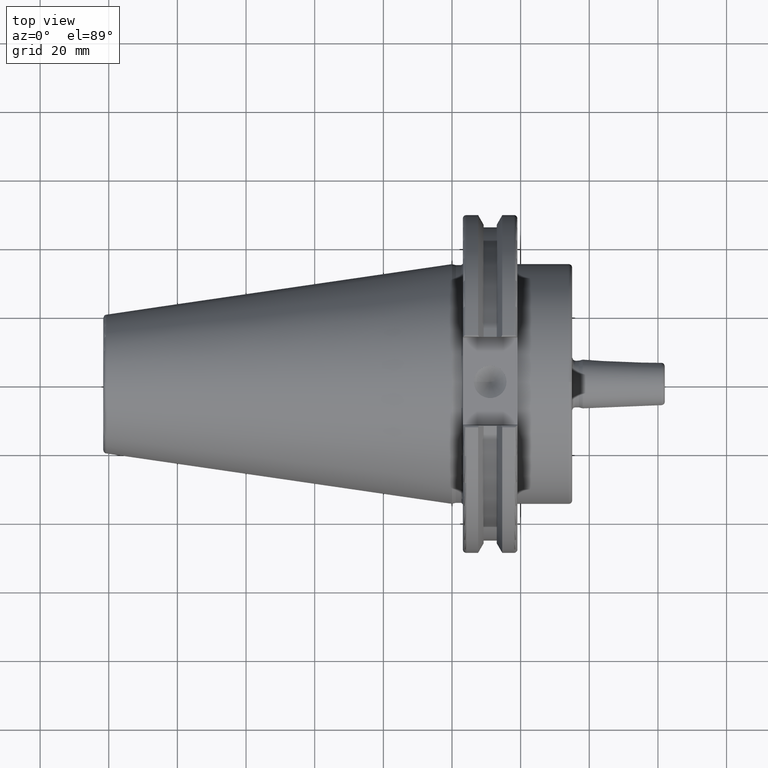
[diagram: clean part render]
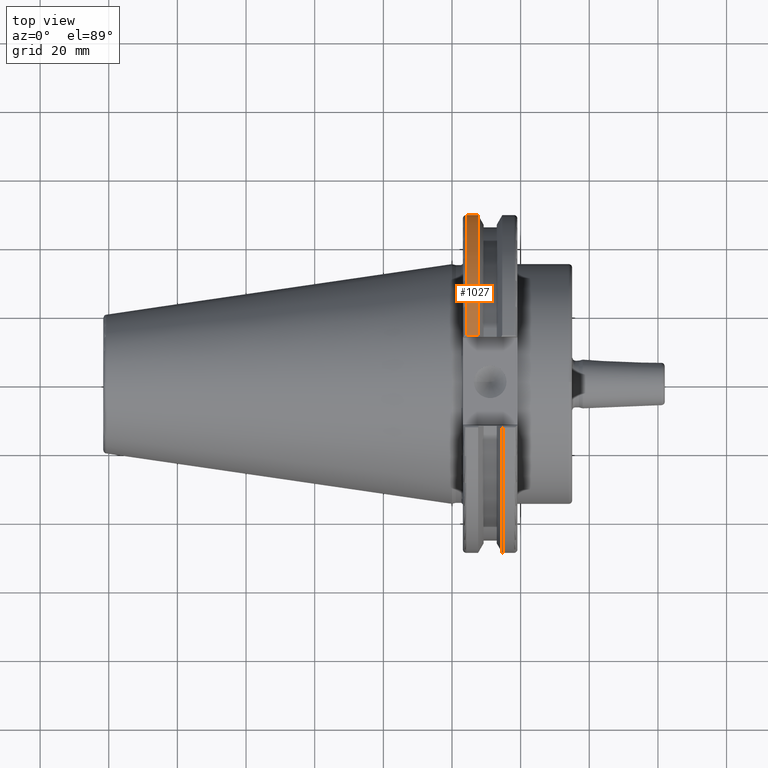
[diagram: same view with one face highlighted and labeled with its STEP entity id]
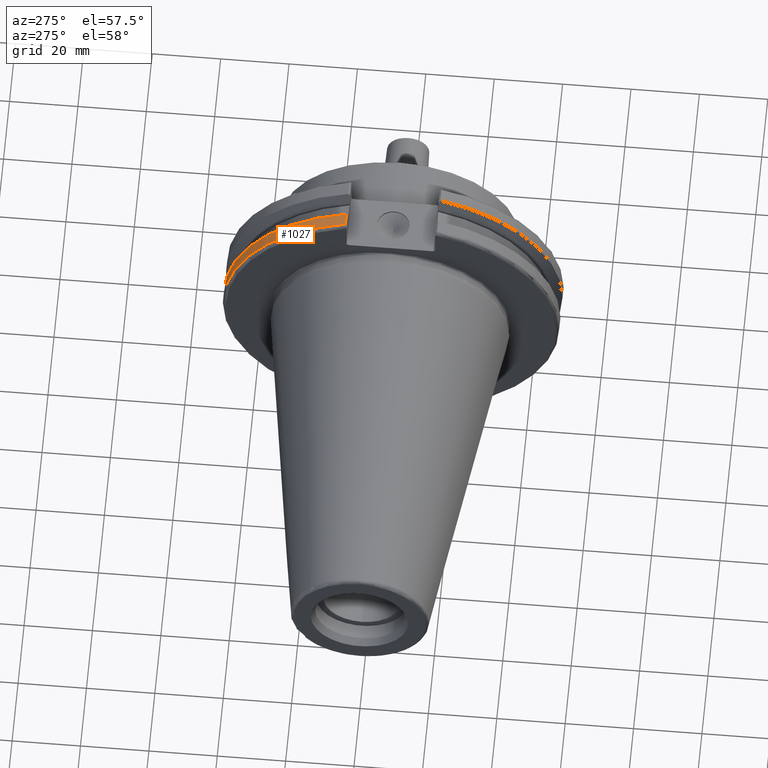
[diagram: same view with one face highlighted and labeled with its STEP entity id]
A machine part, top view. The second image highlights one B-rep face of the part: STEP entity #1027.
A second angle (auxiliary view) of the same face is appended — the face is thin or edge-on in the first view.
In plain terms, the highlighted cylindrical surface (partial cylindrical patch) has radius 49.2125 mm, axis along (1, 0, 0).
Its self-contained STEP definition (entity closure, byte-faithful):
#139=FACE_OUTER_BOUND('',#203,.T.);
#203=EDGE_LOOP('',(#883,#884,#885,#886));
#275=LINE('',#1806,#344);
#289=LINE('',#1865,#358);
#344=VECTOR('',#1350,10.);
#358=VECTOR('',#1402,10.);
#395=CIRCLE('',#1128,49.2125);
#403=CIRCLE('',#1149,49.2125);
#495=VERTEX_POINT('',#1779);
#496=VERTEX_POINT('',#1788);
#497=VERTEX_POINT('',#1805);
#511=VERTEX_POINT('',#1864);
#619=EDGE_CURVE('',#495,#496,#395,.T.);
#622=EDGE_CURVE('',#496,#497,#275,.T.);
#647=EDGE_CURVE('',#511,#495,#289,.T.);
#648=EDGE_CURVE('',#497,#511,#403,.T.);
#883=ORIENTED_EDGE('',*,*,#619,.F.);
#884=ORIENTED_EDGE('',*,*,#647,.F.);
#885=ORIENTED_EDGE('',*,*,#648,.F.);
#886=ORIENTED_EDGE('',*,*,#622,.F.);
#983=CYLINDRICAL_SURFACE('',#1148,49.2125);
#1027=ADVANCED_FACE('',(#139),#983,.T.);
#1128=AXIS2_PLACEMENT_3D('',#1789,#1346,#1347);
#1148=AXIS2_PLACEMENT_3D('',#1863,#1400,#1401);
#1149=AXIS2_PLACEMENT_3D('',#1866,#1403,#1404);
#1346=DIRECTION('center_axis',(-1.,0.,0.));
#1347=DIRECTION('ref_axis',(0.,1.,-6.12323399573677E-17));
#1350=DIRECTION('',(1.,0.,0.));
#1400=DIRECTION('center_axis',(1.,0.,0.));
#1401=DIRECTION('ref_axis',(0.,1.,0.));
#1402=DIRECTION('',(-1.,0.,0.));
#1403=DIRECTION('center_axis',(1.,0.,0.));
#1404=DIRECTION('ref_axis',(0.,0.,-1.));
#1779=CARTESIAN_POINT('',(4.175,13.4317035994433,47.3440544806494));
#1788=CARTESIAN_POINT('',(4.175,13.4317035994433,-47.3440544806494));
#1789=CARTESIAN_POINT('Origin',(4.175,0.,0.));
#1805=CARTESIAN_POINT('',(7.60119096595128,13.4317035994433,-47.3440544806494));
#1806=CARTESIAN_POINT('',(5.38809548297564,13.4317035994433,-47.3440544806494));
#1863=CARTESIAN_POINT('Origin',(5.38809548297564,0.,0.));
#1864=CARTESIAN_POINT('',(7.60119096595128,13.4317035994433,47.3440544806494));
#1865=CARTESIAN_POINT('',(5.38809548297564,13.4317035994433,47.3440544806494));
#1866=CARTESIAN_POINT('Origin',(7.60119096595128,0.,0.));